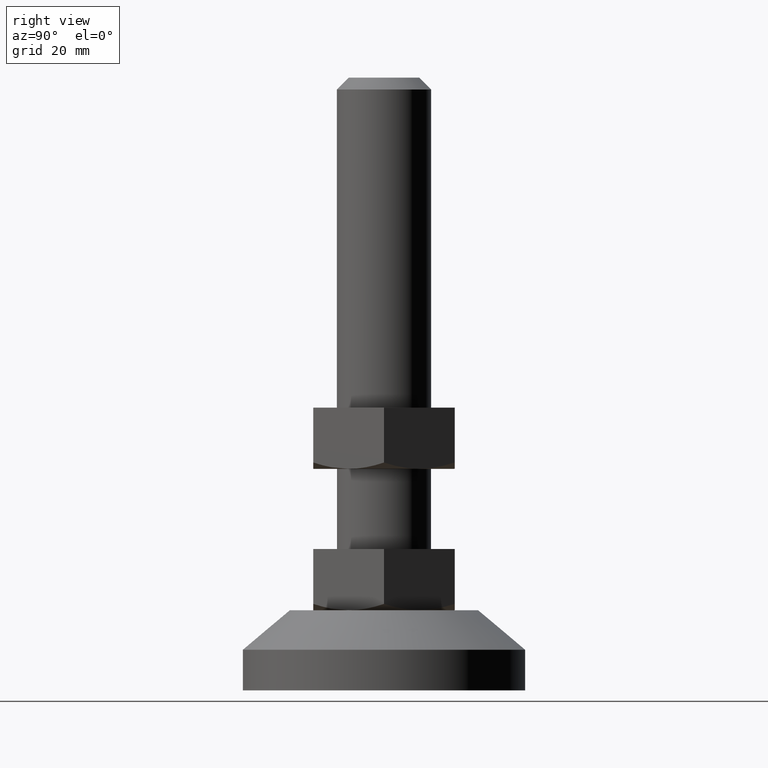
[diagram: clean part render]
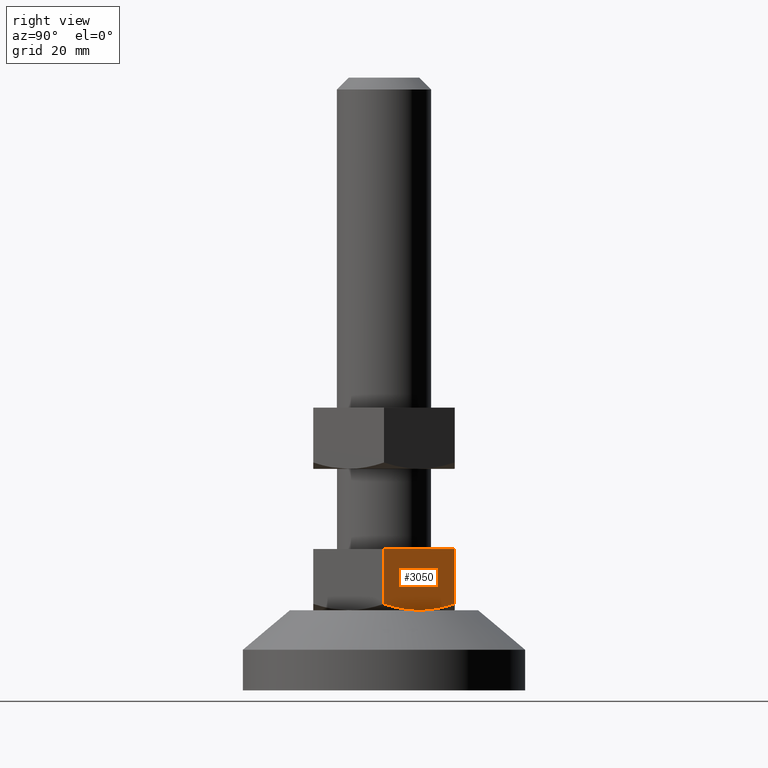
[diagram: same view with one face highlighted and labeled with its STEP entity id]
A machine part, right view. The second image highlights one B-rep face of the part: STEP entity #3050.
In plain terms, the highlighted face is a freeform B-spline surface patch.
Its self-contained STEP definition (entity closure, byte-faithful):
#2855=CARTESIAN_POINT('',(17.300000000000001,0.0,30.0));
#2856=VERTEX_POINT('',#2855);
#2862=CARTESIAN_POINT('',(8.639746000000001,15.0,30.0));
#2863=VERTEX_POINT('',#2862);
#2864=CARTESIAN_POINT('',(8.639746000000001,15.0,30.0));
#2865=CARTESIAN_POINT('',(17.300000000000001,0.0,30.0));
#2866=QUASI_UNIFORM_CURVE('',1,(#2864,#2865),.UNSPECIFIED.,.F.,.U.);
#2867=EDGE_CURVE('',#2863,#2856,#2866,.T.);
#2985=CARTESIAN_POINT('',(17.300000000000001,1.536538E-016,18.339745951230899));
#2986=VERTEX_POINT('',#2985);
#3004=CARTESIAN_POINT('',(17.300000000000001,0.0,30.0));
#3005=CARTESIAN_POINT('',(17.300000000000001,1.536538E-016,18.339745951230899));
#3006=QUASI_UNIFORM_CURVE('',1,(#3004,#3005),.UNSPECIFIED.,.F.,.U.);
#3007=EDGE_CURVE('',#2856,#2986,#3006,.T.);
#3013=CARTESIAN_POINT('',(17.732579670514770,-0.749249970927079,16.352317869657199));
#3014=CARTESIAN_POINT('',(8.207166097199140,15.749250373258439,16.352317869657199));
#3015=CARTESIAN_POINT('',(17.732579670514770,-0.749249970927079,30.649270977928989));
#3016=CARTESIAN_POINT('',(8.207166097199140,15.749250373258439,30.649270977928989));
#3017=B_SPLINE_SURFACE_WITH_KNOTS('',1,1,((#3013,#3015),(#3014,#3016)),.UNSPECIFIED.,.F.,.F.,.U.,(2,2),(2,2),(0.0,19.050827209068778),(0.0,14.296953108271790),.UNSPECIFIED.);
#3018=ORIENTED_EDGE('',*,*,#3007,.T.);
#3019=CARTESIAN_POINT('',(8.639746000000001,15.0,18.345671394023402));
#3020=VERTEX_POINT('',#3019);
#3021=CARTESIAN_POINT('',(17.300000000000001,1.536538E-016,18.339745951230899));
#3022=CARTESIAN_POINT('',(16.592941722767890,1.224660865429820,17.931525664537720));
#3023=CARTESIAN_POINT('',(15.880722203566361,2.458261264219843,17.595166574799951));
#3024=CARTESIAN_POINT('',(14.801235094892681,4.327987790728774,17.245981053792150));
#3025=CARTESIAN_POINT('',(14.439541958482749,4.954458682477309,17.155540189445990));
#3026=CARTESIAN_POINT('',(13.711936844397590,6.214707713426931,17.033398389028530));
#3027=CARTESIAN_POINT('',(13.346021212827759,6.848492181359094,17.001748326998669));
#3028=CARTESIAN_POINT('',(12.885799685170850,7.645619253481179,17.001546577077850));
#3029=CARTESIAN_POINT('',(12.793614645803340,7.805288426061185,17.003465697697159));
#3030=CARTESIAN_POINT('',(12.608961067811620,8.125117806339851,17.011251166375079));
#3031=CARTESIAN_POINT('',(12.516661840701390,8.284984757892708,17.017113104138222));
#3032=CARTESIAN_POINT('',(12.240427566274500,8.763436558082770,17.040486526452199));
#3033=CARTESIAN_POINT('',(12.056912984918879,9.081293138309441,17.063800979005251));
#3034=CARTESIAN_POINT('',(11.508210259183761,10.031674141687271,17.155931109065229));
#3035=CARTESIAN_POINT('',(11.144867414517419,10.661002411966081,17.246985155436391));
#3036=CARTESIAN_POINT('',(10.061320491401830,12.537760743388420,17.598259512653300));
#3037=CARTESIAN_POINT('',(9.347572270797704,13.774008930688920,17.936281682498400));
#3038=CARTESIAN_POINT('',(8.639745999999969,15.000000000000050,18.345671394023071));
#3039=B_SPLINE_CURVE_WITH_KNOTS('',3,(#3021,#3022,#3023,#3024,#3025,#3026,#3027,#3028,#3029,#3030,#3031,#3032,#3033,#3034,#3035,#3036,#3037,#3038),.UNSPECIFIED.,.F.,.U.,(4,2,2,2,2,2,2,2,4),(0.0,0.250000000000000,0.374999999999999,0.499999999999999,0.531249999999999,0.562499999999999,0.624999999999999,0.749999999999999,1.0),.UNSPECIFIED.);
#3040=EDGE_CURVE('',#2986,#3020,#3039,.T.);
#3041=ORIENTED_EDGE('',*,*,#3040,.T.);
#3042=CARTESIAN_POINT('',(8.639746000000001,15.0,30.0));
#3043=CARTESIAN_POINT('',(8.639746000000001,15.0,18.345671394023402));
#3044=QUASI_UNIFORM_CURVE('',1,(#3042,#3043),.UNSPECIFIED.,.F.,.U.);
#3045=EDGE_CURVE('',#2863,#3020,#3044,.T.);
#3046=ORIENTED_EDGE('',*,*,#3045,.F.);
#3047=ORIENTED_EDGE('',*,*,#2867,.T.);
#3048=EDGE_LOOP('',(#3018,#3041,#3046,#3047));
#3049=FACE_OUTER_BOUND('',#3048,.T.);
#3050=ADVANCED_FACE('',(#3049),#3017,.T.);